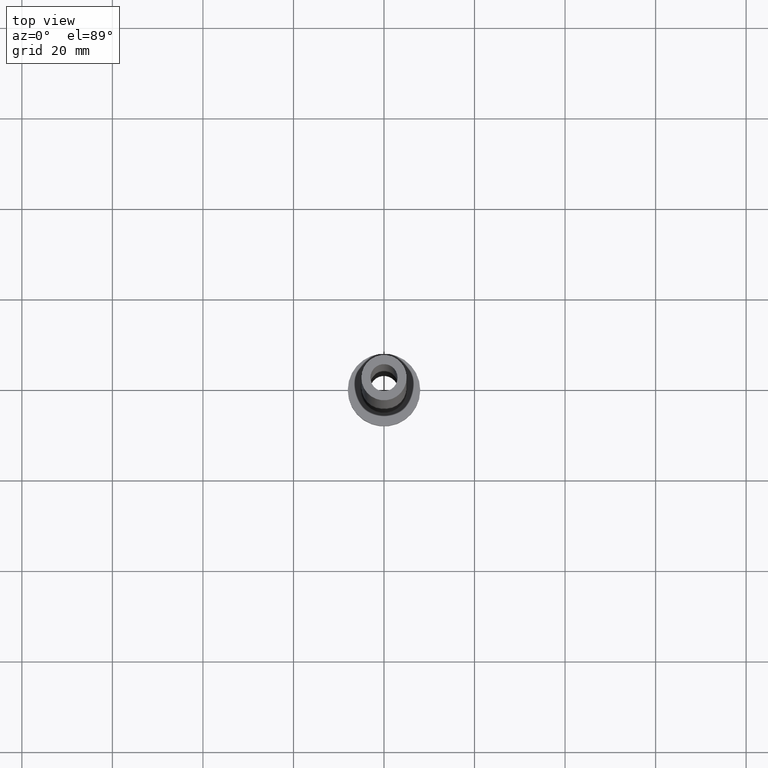
[diagram: clean part render]
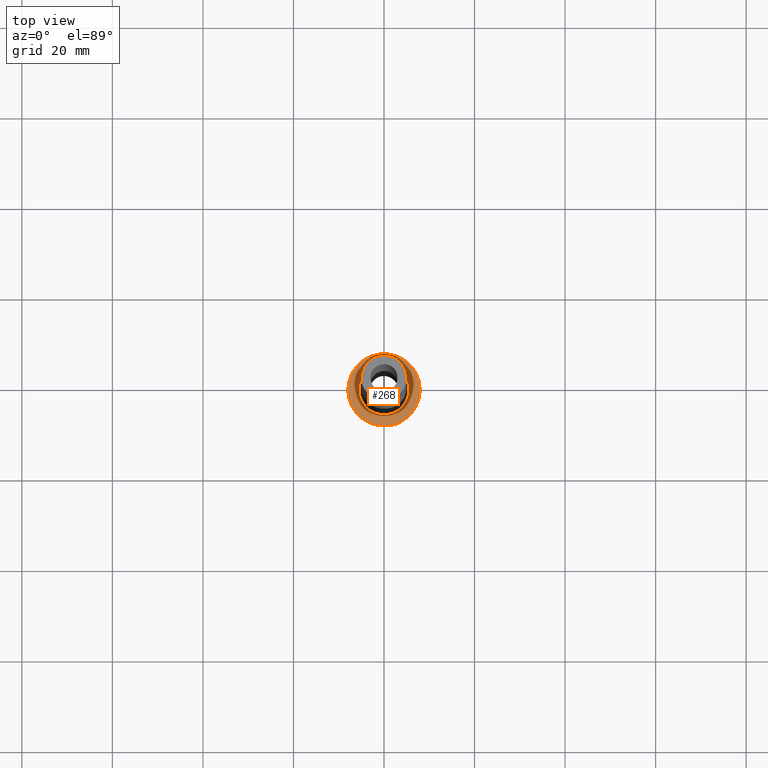
[diagram: same view with one face highlighted and labeled with its STEP entity id]
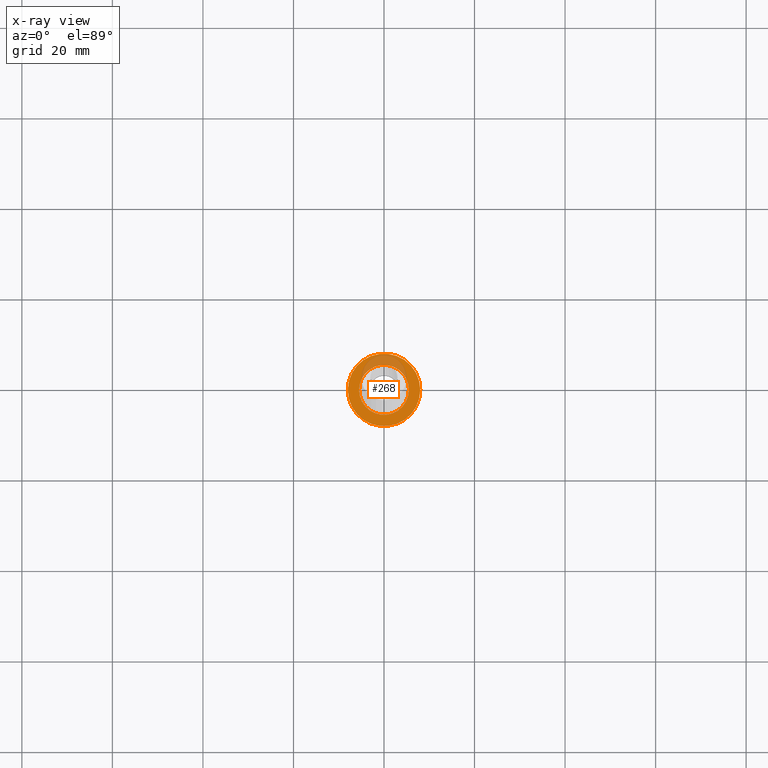
[diagram: x-ray of the same camera — body ghosted, the highlighted face saturated]
A machine part, top view. The second image highlights one B-rep face of the part: STEP entity #268.
The next image is the same camera in x-ray: the body ghosted, the highlighted face saturated — about 19% of this face is hidden behind the body in this view.
In plain terms, the highlighted planar face has unit normal (0, 0, 1).
Its self-contained STEP definition (entity closure, byte-faithful):
#3 = AXIS2_PLACEMENT_3D ( 'NONE', #190, #428, #461 ) ;
#10 = VERTEX_POINT ( 'NONE', #149 ) ;
#15 = DIRECTION ( 'NONE',  ( 0.000000000000000000, 0.000000000000000000, 1.000000000000000000 ) ) ;
#45 = VERTEX_POINT ( 'NONE', #150 ) ;
#48 = EDGE_LOOP ( 'NONE', ( #416, #346 ) ) ;
#83 = VERTEX_POINT ( 'NONE', #324 ) ;
#86 = CARTESIAN_POINT ( 'NONE',  ( 0.000000000000000000, 0.000000000000000000, 5.000000000000000000 ) ) ;
#89 = CIRCLE ( 'NONE', #380, 8.000000000000000000 ) ;
#102 = FACE_OUTER_BOUND ( 'NONE', #359, .T. ) ;
#125 = CIRCLE ( 'NONE', #167, 5.500000000000000000 ) ;
#132 = CIRCLE ( 'NONE', #168, 8.000000000000000000 ) ;
#149 = CARTESIAN_POINT ( 'NONE',  ( 8.000000000000000000, 9.797174393178825657E-16, 5.000000000000000000 ) ) ;
#150 = CARTESIAN_POINT ( 'NONE',  ( -5.500000000000000000, 6.735557395310442023E-16, 5.000000000000002665 ) ) ;
#161 = DIRECTION ( 'NONE',  ( 1.000000000000000000, 0.000000000000000000, -0.000000000000000000 ) ) ;
#167 = AXIS2_PLACEMENT_3D ( 'NONE', #207, #382, #458 ) ;
#168 = AXIS2_PLACEMENT_3D ( 'NONE', #449, #15, #411 ) ;
#175 = EDGE_CURVE ( 'NONE', #45, #83, #208, .T. ) ;
#190 = CARTESIAN_POINT ( 'NONE',  ( 0.000000000000000000, 0.000000000000000000, 5.000000000000000000 ) ) ;
#207 = CARTESIAN_POINT ( 'NONE',  ( 0.000000000000000000, 0.000000000000000000, 5.000000000000000000 ) ) ;
#208 = CIRCLE ( 'NONE', #3, 5.500000000000000000 ) ;
#212 = VERTEX_POINT ( 'NONE', #291 ) ;
#216 = CARTESIAN_POINT ( 'NONE',  ( 0.000000000000000000, 0.000000000000000000, 5.000000000000000000 ) ) ;
#228 = DIRECTION ( 'NONE',  ( 0.000000000000000000, 0.000000000000000000, 1.000000000000000000 ) ) ;
#240 = PLANE ( 'NONE',  #279 ) ;
#243 = EDGE_CURVE ( 'NONE', #83, #45, #125, .T. ) ;
#268 = ADVANCED_FACE ( 'NONE', ( #417, #102 ), #240, .T. ) ;
#279 = AXIS2_PLACEMENT_3D ( 'NONE', #216, #338, #161 ) ;
#291 = CARTESIAN_POINT ( 'NONE',  ( -8.000000000000000000, 0.000000000000000000, 5.000000000000000000 ) ) ;
#306 = ORIENTED_EDGE ( 'NONE', *, *, #384, .T. ) ;
#324 = CARTESIAN_POINT ( 'NONE',  ( 5.500000000000000000, 0.000000000000000000, 5.000000000000002665 ) ) ;
#338 = DIRECTION ( 'NONE',  ( 0.000000000000000000, 0.000000000000000000, 1.000000000000000000 ) ) ;
#346 = ORIENTED_EDGE ( 'NONE', *, *, #175, .T. ) ;
#359 = EDGE_LOOP ( 'NONE', ( #395, #306 ) ) ;
#368 = DIRECTION ( 'NONE',  ( 1.000000000000000000, 0.000000000000000000, 0.000000000000000000 ) ) ;
#380 = AXIS2_PLACEMENT_3D ( 'NONE', #86, #228, #368 ) ;
#382 = DIRECTION ( 'NONE',  ( -0.000000000000000000, -0.000000000000000000, -1.000000000000000000 ) ) ;
#384 = EDGE_CURVE ( 'NONE', #10, #212, #132, .T. ) ;
#395 = ORIENTED_EDGE ( 'NONE', *, *, #400, .T. ) ;
#400 = EDGE_CURVE ( 'NONE', #212, #10, #89, .T. ) ;
#411 = DIRECTION ( 'NONE',  ( 1.000000000000000000, 0.000000000000000000, 0.000000000000000000 ) ) ;
#416 = ORIENTED_EDGE ( 'NONE', *, *, #243, .T. ) ;
#417 = FACE_BOUND ( 'NONE', #48, .T. ) ;
#428 = DIRECTION ( 'NONE',  ( -0.000000000000000000, -0.000000000000000000, -1.000000000000000000 ) ) ;
#449 = CARTESIAN_POINT ( 'NONE',  ( 0.000000000000000000, 0.000000000000000000, 5.000000000000000000 ) ) ;
#458 = DIRECTION ( 'NONE',  ( 1.000000000000000000, 0.000000000000000000, 0.000000000000000000 ) ) ;
#461 = DIRECTION ( 'NONE',  ( 1.000000000000000000, 0.000000000000000000, 0.000000000000000000 ) ) ;